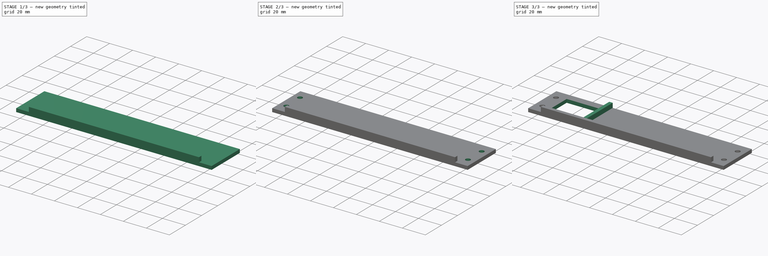
[diagram: build sequence overview — one tinted view per stage of 3, left to right]
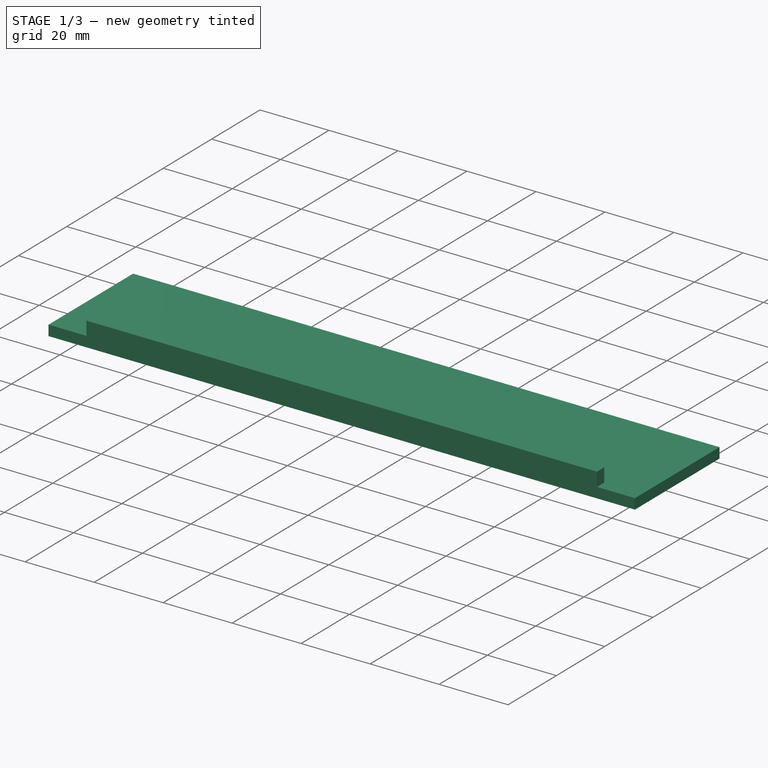
[diagram: stage 1 of 3 — iso view after this stage's code; geometry added in this stage tinted green]
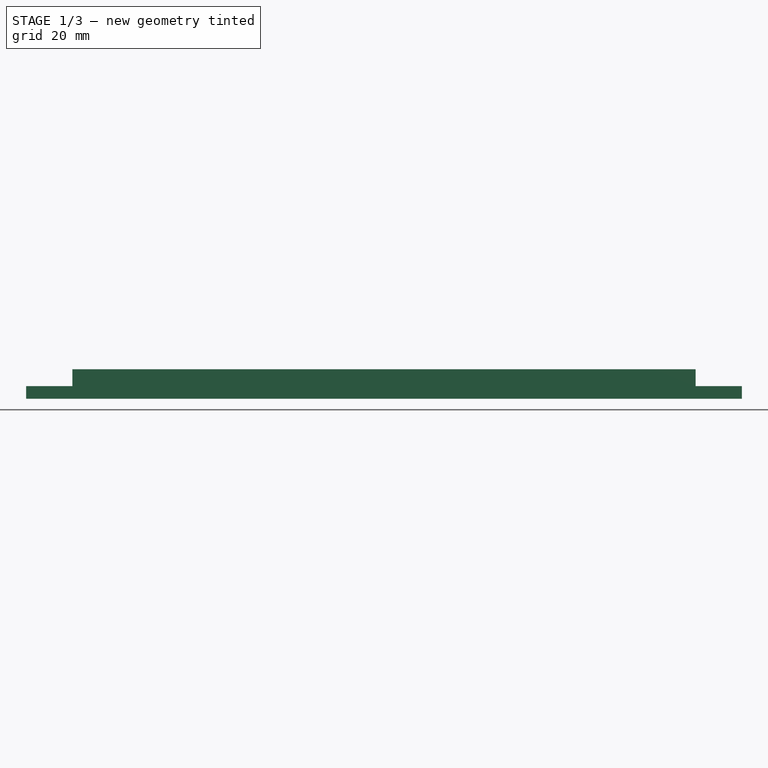
[diagram: stage 1 of 3 — front view after this stage's code; geometry added in this stage tinted green]
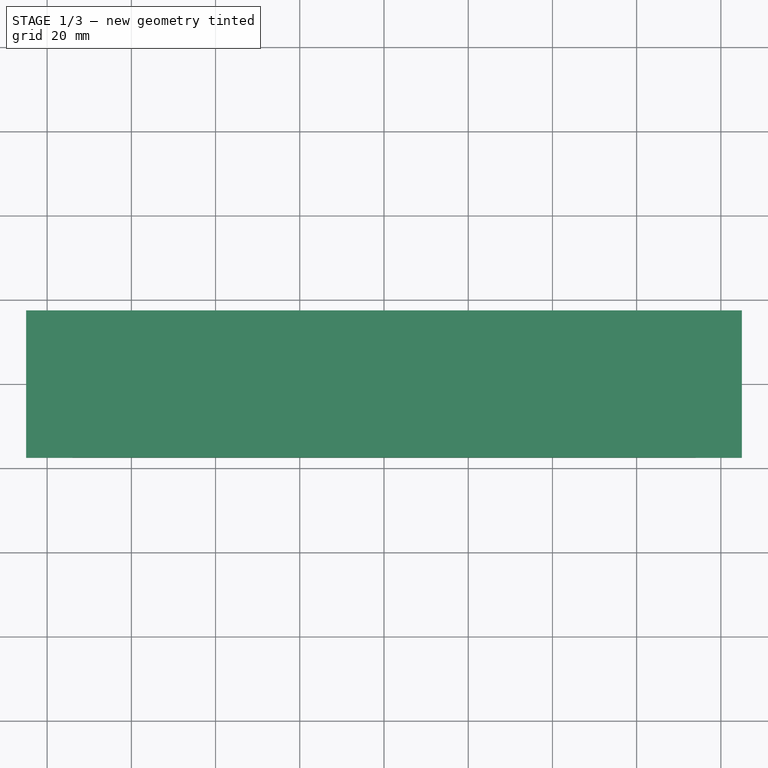
[diagram: stage 1 of 3 — top view after this stage's code; geometry added in this stage tinted green]
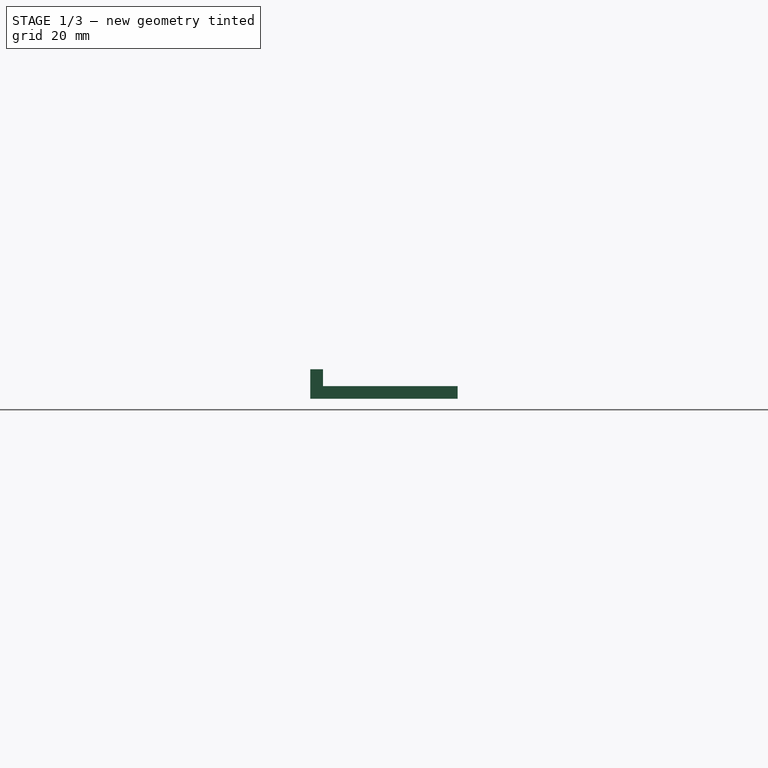
[diagram: stage 1 of 3 — right view after this stage's code; geometry added in this stage tinted green]
FCSTD DOCUMENT
Label: ElectronicEnclosureSwitchSide
objects: Sketcher::SketchObject×5, PartDesign::Pad×3, PartDesign::Pocket×2, PartDesign::Mirrored×2, PartDesign::MultiTransform×1, Part::Feature×1
note: 19 computed .brp shape members not serialized (recipe doc carries the construction recipe); baked Part::Feature solids carry a one-line shape summary decoded from their .brp

FEATURE [Sketcher::SketchObject] Sketch
  sketch-geometry (4):
    g0: LineSegment StartX=-85 StartY=17.5 StartZ=0 EndX=85 EndY=17.5 EndZ=0
    g1: LineSegment StartX=85 StartY=17.5 StartZ=0 EndX=85 EndY=-17.5 EndZ=0
    g2: LineSegment StartX=85 StartY=-17.5 StartZ=0 EndX=-85 EndY=-17.5 EndZ=0
    g3: LineSegment StartX=-85 StartY=-17.5 StartZ=0 EndX=-85 EndY=17.5 EndZ=0
  constraints (11):
    c: Coincident(g0,g1)
    c: Coincident(g1,g2)
    c: Coincident(g2,g3)
    c: Coincident(g3,g0)
    c: Horizontal(g0)
    c: Horizontal(g2)
    c: Vertical(g1)
    c: Vertical(g3)
    c: Symmetric(g2,g0,g-1)
    c: DistanceY(g1) = -35
    c: DistanceX(g0) = 170
FEATURE [PartDesign::Pad] Pad
  Length = 3
  Length2 = 100
  Sketch = -> Sketch
  Type = 0
FEATURE [Sketcher::SketchObject] Sketch001
  ExternalGeometry = -> [Pad]
  Placement = pos=(0,0,3) rot=(0,0,1;0rad)
  Support = -> Pad [Face6]
  sketch-geometry (4):
    g0: LineSegment StartX=-74 StartY=-17.5 StartZ=0 EndX=74 EndY=-17.5 EndZ=0
    g1: LineSegment StartX=74 StartY=-17.5 StartZ=0 EndX=74 EndY=-14.5 EndZ=0
    g2: LineSegment StartX=74 StartY=-14.5 StartZ=0 EndX=-74 EndY=-14.5 EndZ=0
    g3: LineSegment StartX=-74 StartY=-14.5 StartZ=0 EndX=-74 EndY=-17.5 EndZ=0
  constraints (12):
    c: Coincident(g0,g1)
    c: Coincident(g1,g2)
    c: Coincident(g2,g3)
    c: Coincident(g3,g0)
    c: Horizontal(g0)
    c: Horizontal(g2)
    c: Vertical(g1)
    c: Vertical(g3)
    c: PointOnObject(g-3,g0)
    c: DistanceX(g0,g-3) = -11
    c: Symmetric(g0,g0,g-2)
    c: DistanceY(g1) = 3
FEATURE [PartDesign::Pad] Pad001
  Length = 4
  Length2 = 100
  Sketch = -> Sketch001
  Type = 0
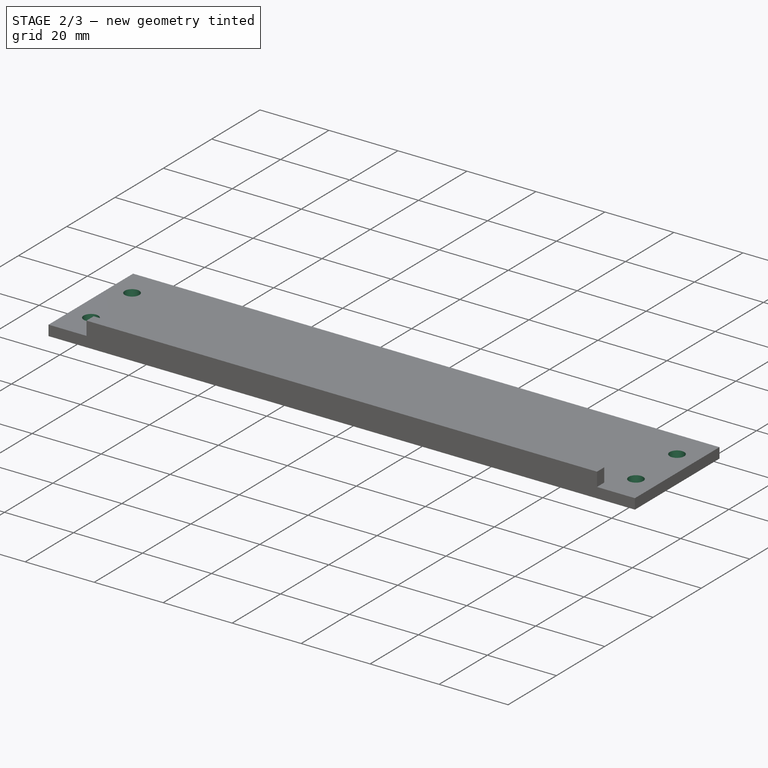
[diagram: stage 2 of 3 — iso view after this stage's code; geometry added in this stage tinted green]
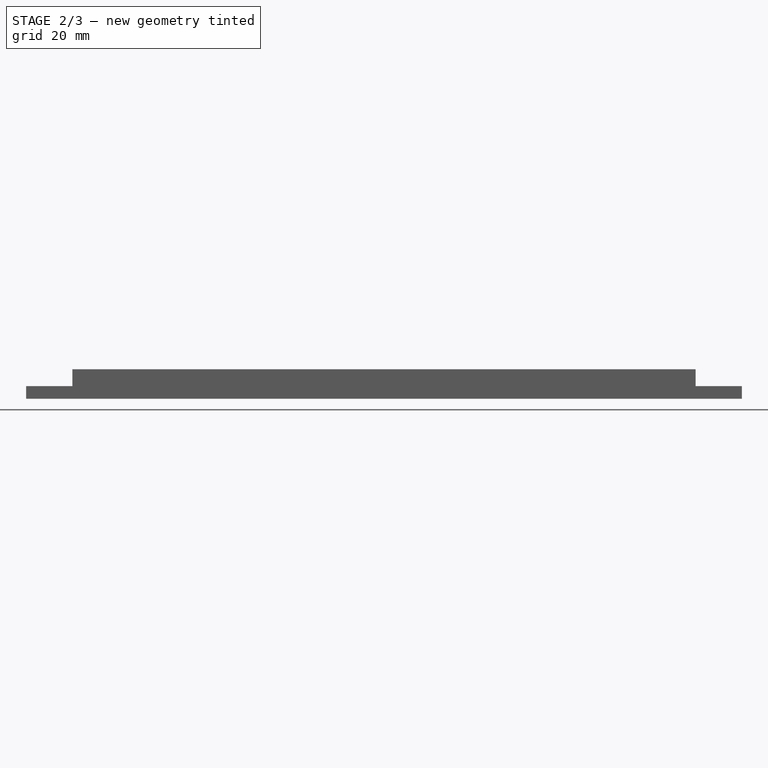
[diagram: stage 2 of 3 — front view after this stage's code; geometry added in this stage tinted green]
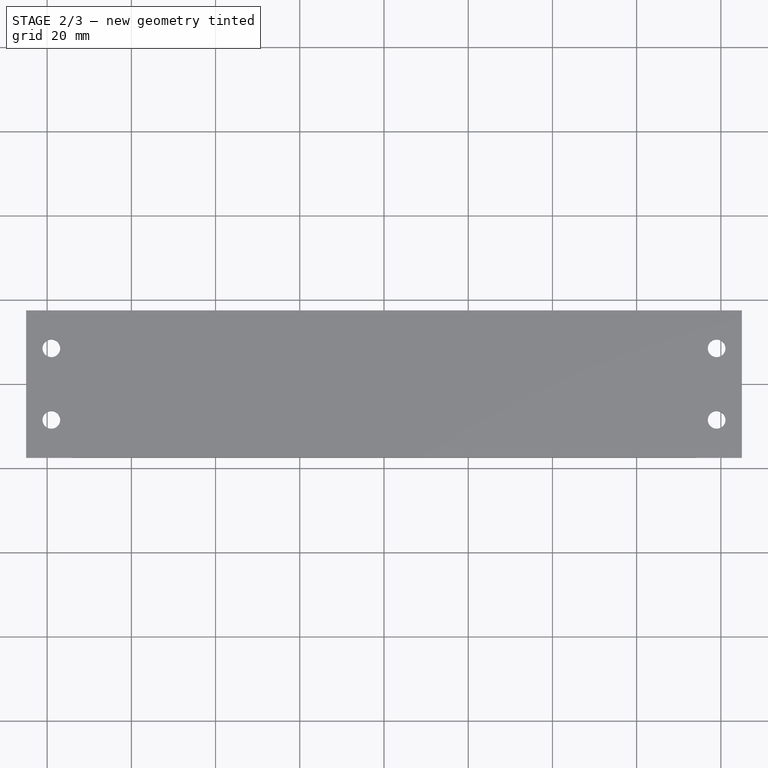
[diagram: stage 2 of 3 — top view after this stage's code; geometry added in this stage tinted green]
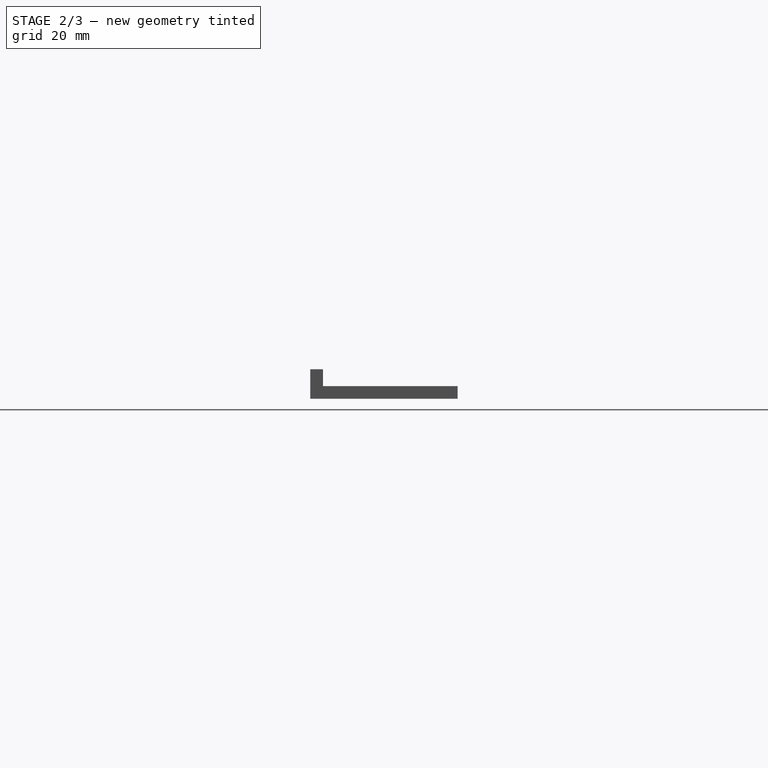
[diagram: stage 2 of 3 — right view after this stage's code; geometry added in this stage tinted green]
FEATURE [Sketcher::SketchObject] Sketch002
  ExternalGeometry = -> [Pad001]
  Placement = pos=(0,0,3) rot=(0,0,1;0rad)
  Support = -> Pad001 [Face5]
  sketch-geometry (1):
    g0: Circle CenterX=79 CenterY=-8.5 CenterZ=0 NormalX=0 NormalY=0 NormalZ=1 Radius=2.1
  constraints (3):
    c: Radius(g0) = 2.1
    c: DistanceY(g0,g-3) = -9
    c: DistanceX(g0,g-3) = 6
FEATURE [PartDesign::Pocket] Pocket
  Length = 5
  Sketch = -> Sketch002
  Type = 1
FEATURE [PartDesign::Mirrored] Mirrored
  StdMirrorPlane = XZ
FEATURE [PartDesign::Mirrored] Mirrored001
  StdMirrorPlane = YZ
FEATURE [PartDesign::MultiTransform] MultiTransform
  Originals = -> [Pocket]
  Transformations = -> [Mirrored,Mirrored001]
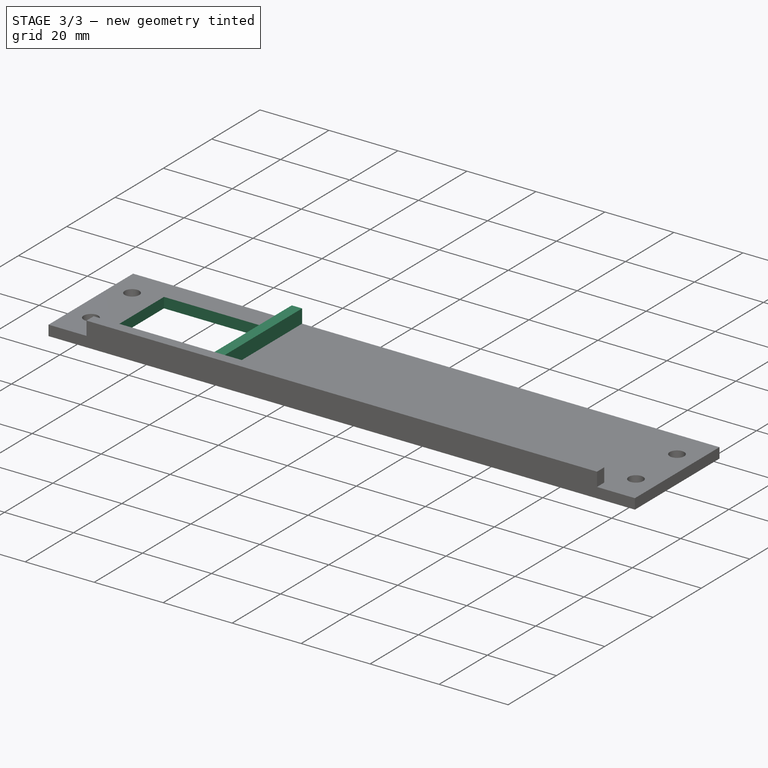
[diagram: stage 3 of 3 — iso view after this stage's code; geometry added in this stage tinted green]
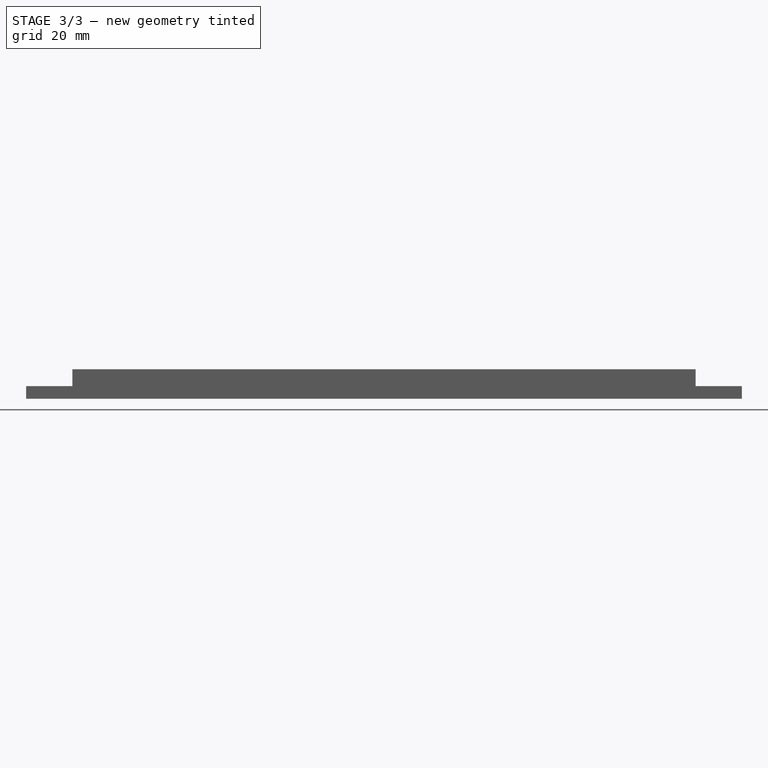
[diagram: stage 3 of 3 — front view after this stage's code; geometry added in this stage tinted green]
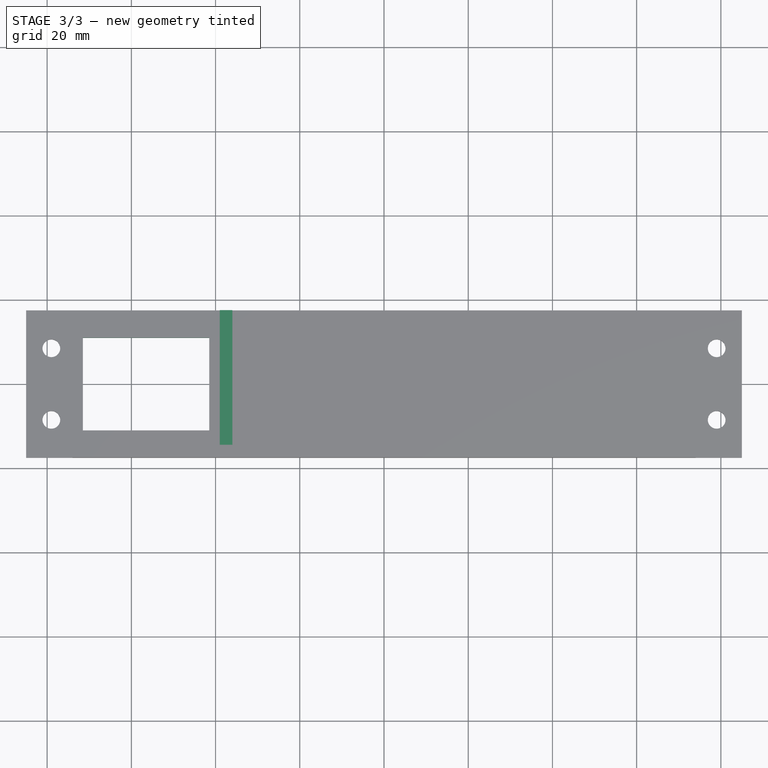
[diagram: stage 3 of 3 — top view after this stage's code; geometry added in this stage tinted green]
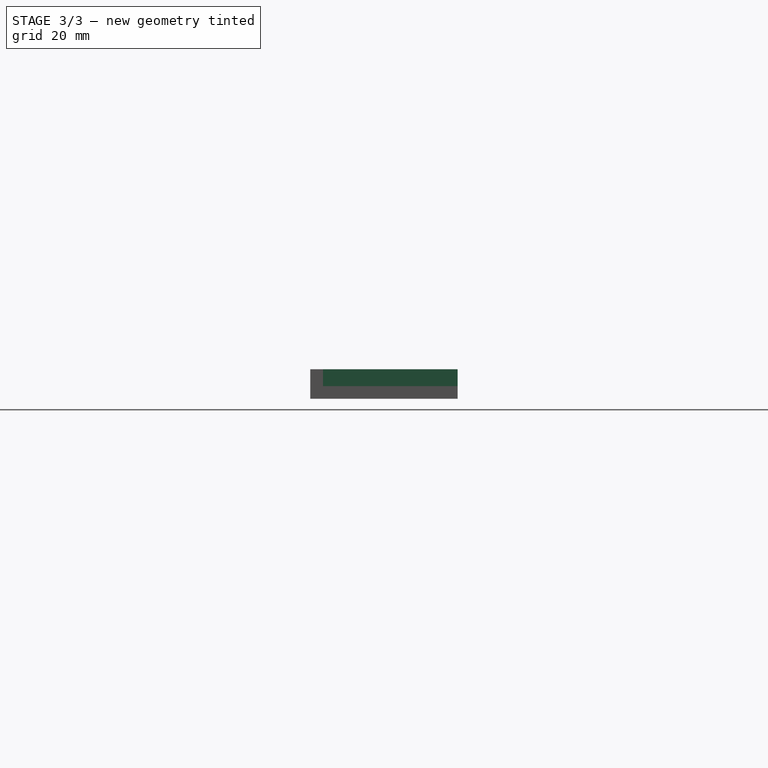
[diagram: stage 3 of 3 — right view after this stage's code; geometry added in this stage tinted green]
FEATURE [Sketcher::SketchObject] Sketch003
  ExternalGeometry = -> [MultiTransform]
  Placement = pos=(0,0,3) rot=(0,0,1;0rad)
  Support = -> MultiTransform [Face5]
  sketch-geometry (4):
    g0: LineSegment StartX=-39 StartY=17.5 StartZ=0 EndX=-36 EndY=17.5 EndZ=0
    g1: LineSegment StartX=-36 StartY=17.5 StartZ=0 EndX=-36 EndY=-14.5 EndZ=0
    g2: LineSegment StartX=-36 StartY=-14.5 StartZ=0 EndX=-39 EndY=-14.5 EndZ=0
    g3: LineSegment StartX=-39 StartY=-14.5 StartZ=0 EndX=-39 EndY=17.5 EndZ=0
  constraints (12):
    c: Coincident(g0,g1)
    c: Coincident(g1,g2)
    c: Coincident(g2,g3)
    c: Coincident(g3,g0)
    c: Horizontal(g0)
    c: Horizontal(g2)
    c: Vertical(g1)
    c: Vertical(g3)
    c: DistanceX(g0) = 3
    c: PointOnObject(g-4,g0)
    c: DistanceX(g0,g-4) = -46
    c: PointOnObject(g-3,g2)
FEATURE [PartDesign::Pad] Pad002
  Length = 4
  Length2 = 100
  Sketch = -> Sketch003
  Type = 0
FEATURE [Sketcher::SketchObject] Sketch004
  ExternalGeometry = -> [Pad002]
  Placement = pos=(0,0,3) rot=(0,0,1;0rad)
  Support = -> Pad002 [Face5]
  sketch-geometry (4):
    g0: LineSegment StartX=-71.5 StartY=11 StartZ=0 EndX=-41.5 EndY=11 EndZ=0
    g1: LineSegment StartX=-41.5 StartY=11 StartZ=0 EndX=-41.5 EndY=-11 EndZ=0
    g2: LineSegment StartX=-41.5 StartY=-11 StartZ=0 EndX=-71.5 EndY=-11 EndZ=0
    g3: LineSegment StartX=-71.5 StartY=-11 StartZ=0 EndX=-71.5 EndY=11 EndZ=0
  constraints (12):
    c: Coincident(g0,g1)
    c: Coincident(g1,g2)
    c: Coincident(g2,g3)
    c: Coincident(g3,g0)
    c: Horizontal(g0)
    c: Horizontal(g2)
    c: Vertical(g1)
    c: Vertical(g3)
    c: DistanceX(g0) = 30
    c: DistanceY(g1) = -22
    c: Symmetric(g2,g0,g-1)
    c: DistanceX(g2,g-3) = -13.5
FEATURE [PartDesign::Pocket] Pocket001
  Length = 5
  Sketch = -> Sketch004
  Type = 1
FEATURE [Part::Feature] Pocket001001  label="PartRefine"
  shape: bbox 170 x 35 x 7 mm, 22 faces (baked)
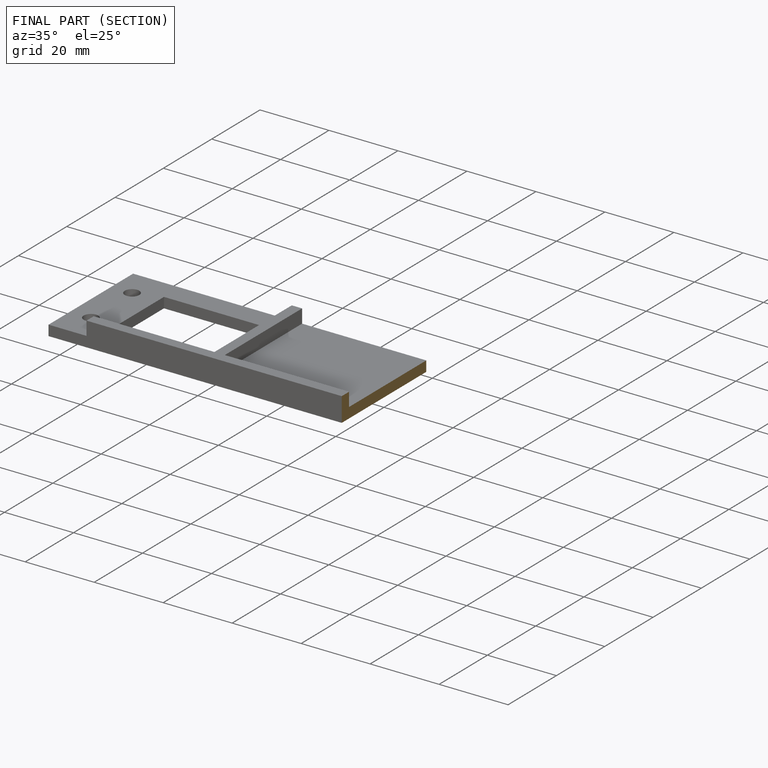
[diagram: finished part — half-section view (interior)]
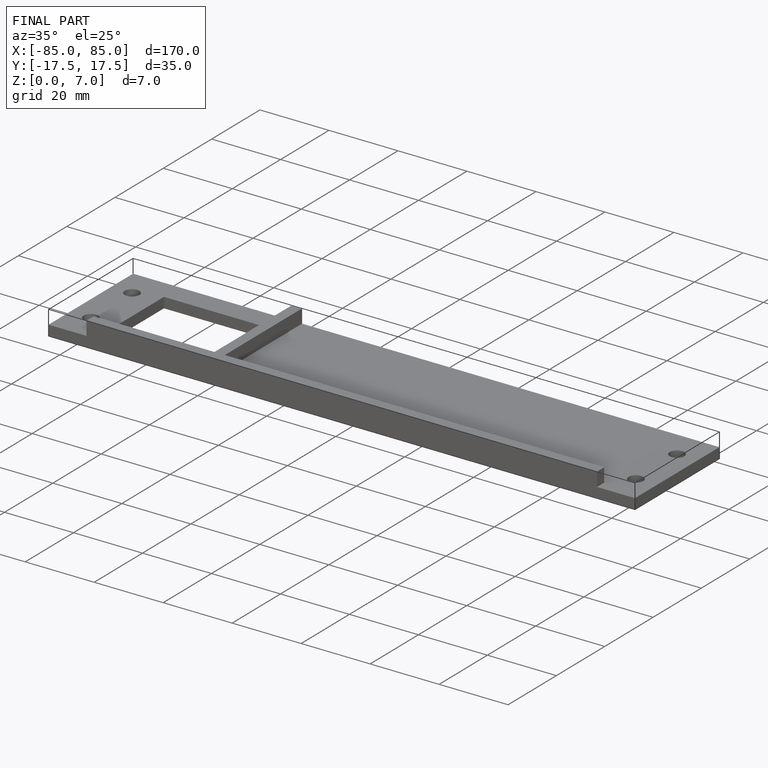
[diagram: finished part — iso view with bounding-box wireframe]
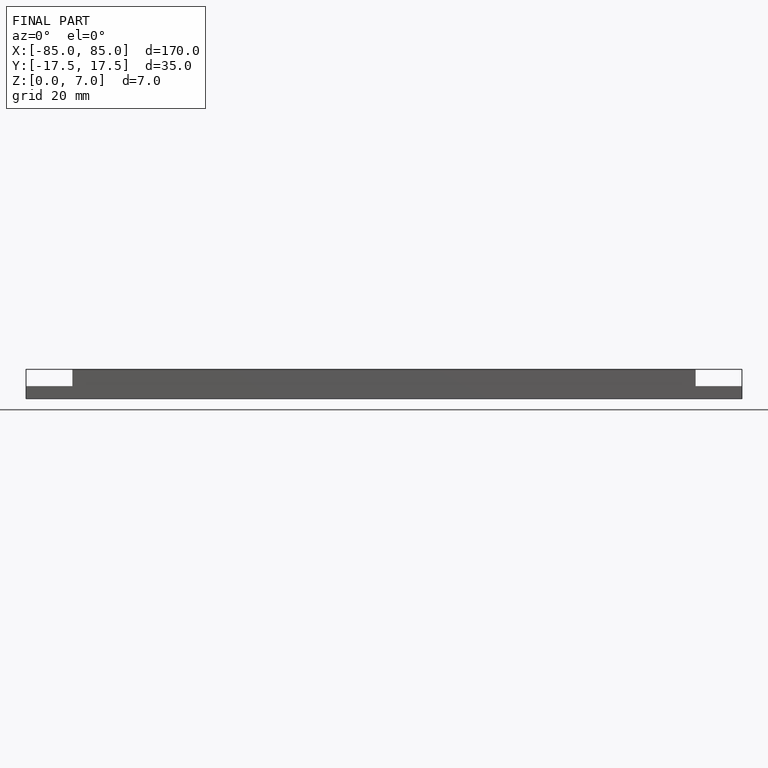
[diagram: finished part — front view with bounding-box wireframe]
